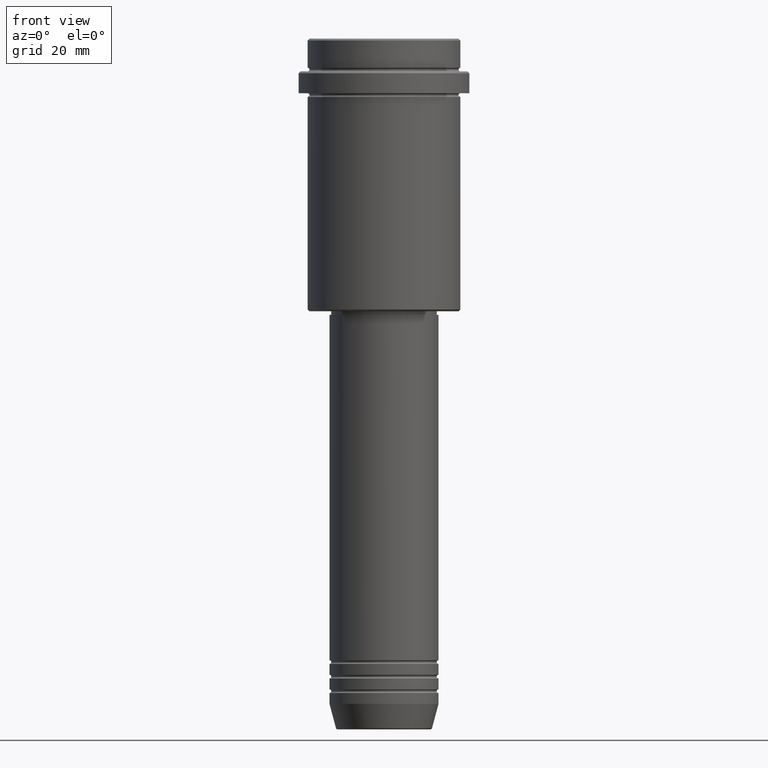
[diagram: clean part render]
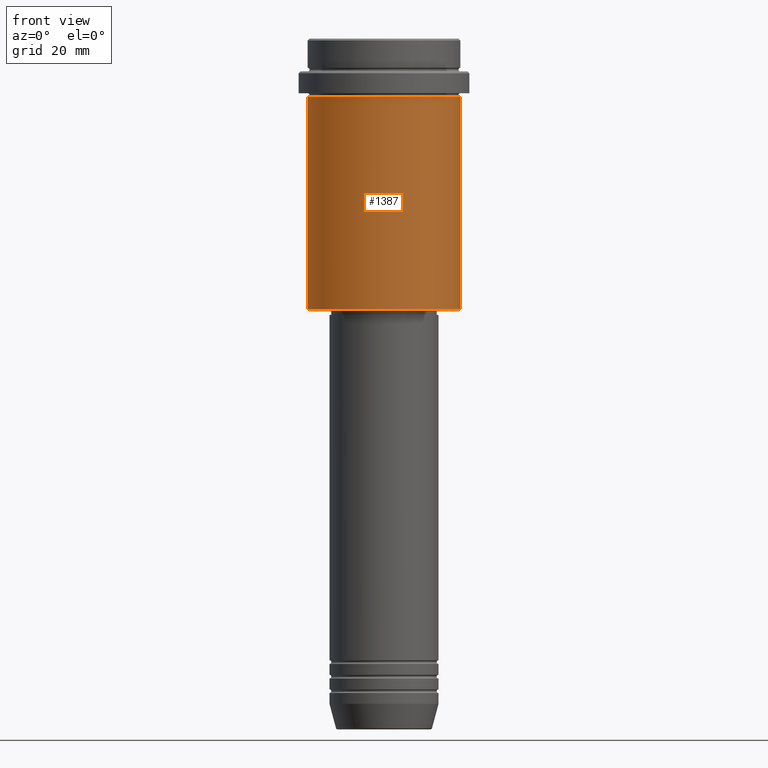
[diagram: same view with one face highlighted and labeled with its STEP entity id]
A machine part, front view. The second image highlights one B-rep face of the part: STEP entity #1387.
In plain terms, the highlighted cylindrical surface (partial cylindrical patch) has radius 21 mm, axis along (-0, -0, 1).
Its self-contained STEP definition (entity closure, byte-faithful):
#8 = VECTOR ( 'NONE', #965, 1000.000000000000000 ) ;
#9 = ORIENTED_EDGE ( 'NONE', *, *, #1087, .F. ) ;
#38 = DIRECTION ( 'NONE',  ( 1.000000000000000000, 0.000000000000000000, 0.000000000000000000 ) ) ;
#61 = VERTEX_POINT ( 'NONE', #1248 ) ;
#133 = DIRECTION ( 'NONE',  ( -0.000000000000000000, -0.000000000000000000, 1.000000000000000000 ) ) ;
#144 = CARTESIAN_POINT ( 'NONE',  ( 0.000000000000000000, 0.000000000000000000, 0.000000000000000000 ) ) ;
#167 = CIRCLE ( 'NONE', #605, 21.00000000000000000 ) ;
#263 = FACE_OUTER_BOUND ( 'NONE', #929, .T. ) ;
#371 = DIRECTION ( 'NONE',  ( -0.000000000000000000, -0.000000000000000000, 1.000000000000000000 ) ) ;
#395 = DIRECTION ( 'NONE',  ( -0.000000000000000000, -0.000000000000000000, 1.000000000000000000 ) ) ;
#412 = LINE ( 'NONE', #1166, #8 ) ;
#415 = EDGE_CURVE ( 'NONE', #521, #1401, #1019, .T. ) ;
#435 = CARTESIAN_POINT ( 'NONE',  ( 0.000000000000000000, 0.000000000000000000, -16.00000000000000355 ) ) ;
#521 = VERTEX_POINT ( 'NONE', #1139 ) ;
#600 = CYLINDRICAL_SURFACE ( 'NONE', #1130, 21.00000000000000000 ) ;
#605 = AXIS2_PLACEMENT_3D ( 'NONE', #1217, #133, #667 ) ;
#646 = VECTOR ( 'NONE', #371, 1000.000000000000000 ) ;
#647 = ORIENTED_EDGE ( 'NONE', *, *, #415, .T. ) ;
#667 = DIRECTION ( 'NONE',  ( -1.000000000000000000, 0.000000000000000000, 0.000000000000000000 ) ) ;
#734 = DIRECTION ( 'NONE',  ( -0.000000000000000000, -0.000000000000000000, 1.000000000000000000 ) ) ;
#778 = ORIENTED_EDGE ( 'NONE', *, *, #1182, .F. ) ;
#803 = CIRCLE ( 'NONE', #994, 21.00000000000000000 ) ;
#833 = VERTEX_POINT ( 'NONE', #1340 ) ;
#911 = CARTESIAN_POINT ( 'NONE',  ( 21.00000000000000000, 0.000000000000000000, -16.00000000000000355 ) ) ;
#929 = EDGE_LOOP ( 'NONE', ( #778, #1137, #647, #9 ) ) ;
#965 = DIRECTION ( 'NONE',  ( -0.000000000000000000, -0.000000000000000000, 1.000000000000000000 ) ) ;
#994 = AXIS2_PLACEMENT_3D ( 'NONE', #435, #734, #1299 ) ;
#1019 = LINE ( 'NONE', #1125, #646 ) ;
#1087 = EDGE_CURVE ( 'NONE', #61, #1401, #803, .T. ) ;
#1125 = CARTESIAN_POINT ( 'NONE',  ( 21.00000000000000000, 0.000000000000000000, 0.000000000000000000 ) ) ;
#1130 = AXIS2_PLACEMENT_3D ( 'NONE', #144, #395, #38 ) ;
#1137 = ORIENTED_EDGE ( 'NONE', *, *, #1234, .T. ) ;
#1139 = CARTESIAN_POINT ( 'NONE',  ( 21.00000000000000000, 0.000000000000000000, -74.49999999999998579 ) ) ;
#1166 = CARTESIAN_POINT ( 'NONE',  ( -21.00000000000000000, 2.571758278209441661E-15, 0.000000000000000000 ) ) ;
#1182 = EDGE_CURVE ( 'NONE', #833, #61, #412, .T. ) ;
#1217 = CARTESIAN_POINT ( 'NONE',  ( 0.000000000000000000, 0.000000000000000000, -74.49999999999998579 ) ) ;
#1234 = EDGE_CURVE ( 'NONE', #833, #521, #167, .T. ) ;
#1248 = CARTESIAN_POINT ( 'NONE',  ( -21.00000000000000000, 2.571758278209441661E-15, -16.00000000000000355 ) ) ;
#1299 = DIRECTION ( 'NONE',  ( 1.000000000000000000, 0.000000000000000000, 0.000000000000000000 ) ) ;
#1340 = CARTESIAN_POINT ( 'NONE',  ( -21.00000000000000000, 2.571758278209441661E-15, -74.49999999999998579 ) ) ;
#1387 = ADVANCED_FACE ( 'NONE', ( #263 ), #600, .T. ) ;
#1401 = VERTEX_POINT ( 'NONE', #911 ) ;